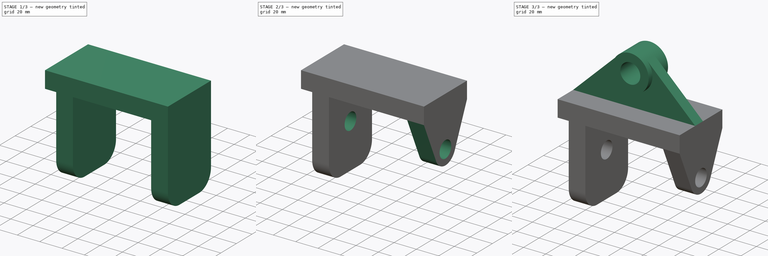
[diagram: build sequence overview — one tinted view per stage of 3, left to right]
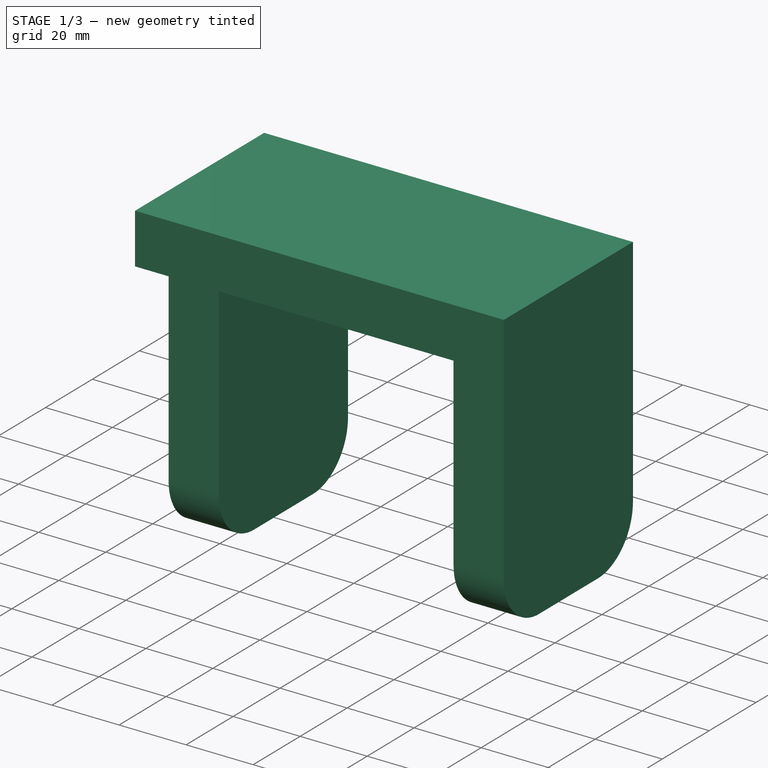
[diagram: stage 1 of 3 — iso view after this stage's code; geometry added in this stage tinted green]
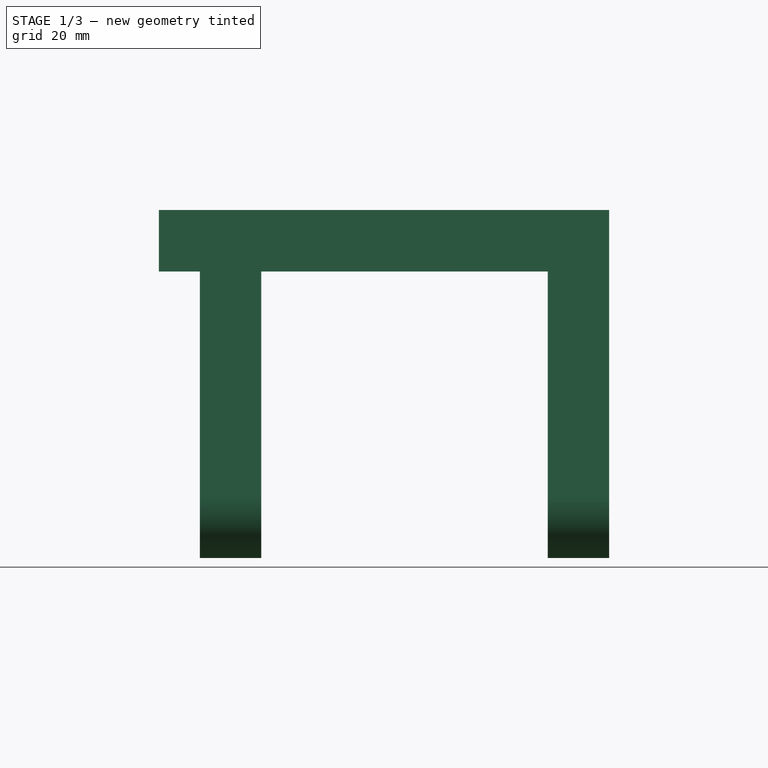
[diagram: stage 1 of 3 — front view after this stage's code; geometry added in this stage tinted green]
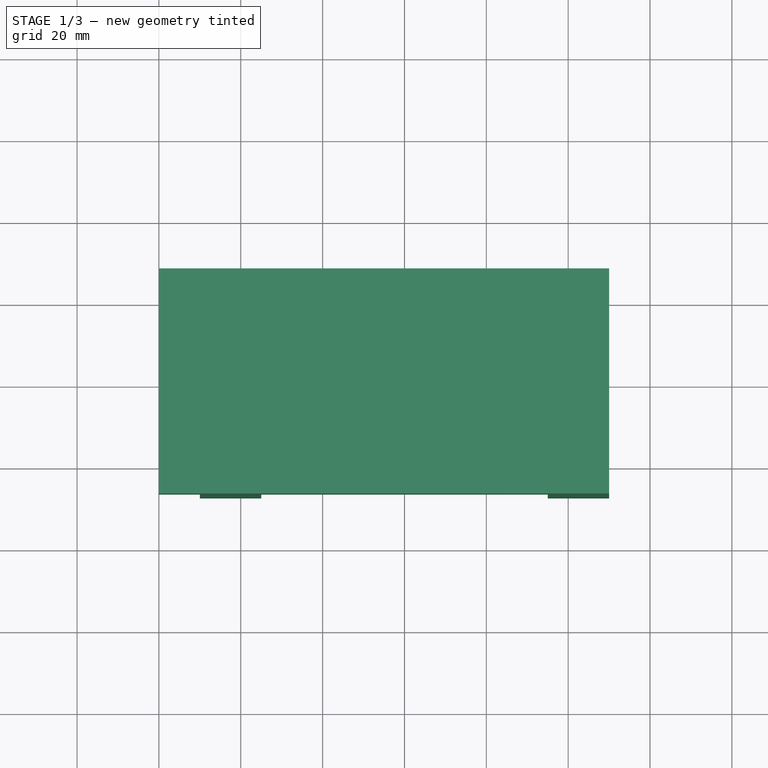
[diagram: stage 1 of 3 — top view after this stage's code; geometry added in this stage tinted green]
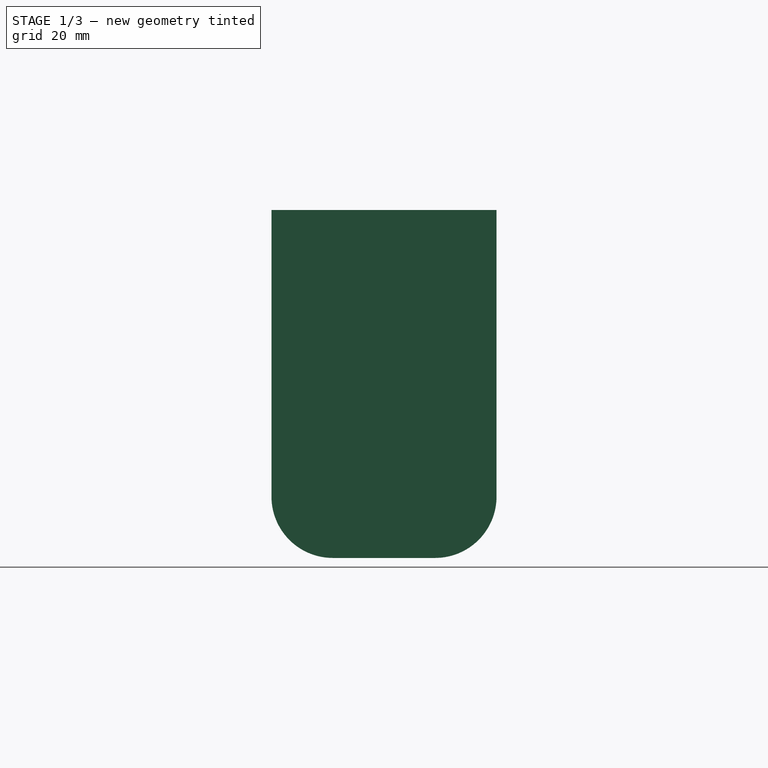
[diagram: stage 1 of 3 — right view after this stage's code; geometry added in this stage tinted green]
FCSTD DOCUMENT  (FreeCAD 1.1R42180 (Git))
Label: 24WC-14-Rear_Support
License: Creative Commons Attribution-NonCommercial-ShareAlike 4.0
LicenseURL: https://creativecommons.org/licenses/by-nc-sa/4.0/
objects: Sketcher::SketchObject×5, PartDesign::Pad×3, PartDesign::Pocket×3, App::Point×1, PartDesign::Body×1, App::TextDocument×1
note: 29 computed .brp shape members not serialized (recipe doc carries the construction recipe); baked Part::Feature solids carry a one-line shape summary decoded from their .brp

FEATURE [App::Point] Origin001  label="Origine"
  Role = Origin
FEATURE [Sketcher::SketchObject] Sketch
  ArcFitTolerance = 1e-06
  AttachmentSupport = -> [Origin]
  ExternalTypes = [0]
  FullyConstrained = true
  MakeInternals = false
  MapMode = 5
  Placement = pos=(0,0,0) rot=(0.57735,0.57735,0.57735;2.0944rad)
  expr: Constraints[6] = 2 * 27.5
  sketch-geometry (8):
    g0: LineSegment StartX=-27.5 StartY=0 StartZ=0 EndX=-27.5 EndY=-70 EndZ=0
    g1: LineSegment StartX=-12.5 StartY=-85 StartZ=0 EndX=12.5 EndY=-85 EndZ=0
    g2: LineSegment StartX=27.5 StartY=-70 StartZ=0 EndX=27.5 EndY=0 EndZ=0
    g3: LineSegment StartX=27.5 StartY=0 StartZ=0 EndX=-27.5 EndY=0 EndZ=0
    g4: ArcOfCircle CenterX=-12.5 CenterY=-70 CenterZ=0 NormalX=0 NormalY=0 NormalZ=1 AngleXU=0 Radius=15 StartAngle=3.14159 EndAngle=4.71239
    g5: GeomPoint [constr] X=-27.5 Y=-85 Z=0
    g6: ArcOfCircle CenterX=12.5 CenterY=-70 CenterZ=0 NormalX=0 NormalY=0 NormalZ=1 AngleXU=0 Radius=15 StartAngle=4.71239 EndAngle=6.28319
    g7: GeomPoint [constr] X=27.5 Y=-85 Z=0
  constraints (19):
    c: Coincident(g2,g3)
    c: Coincident(g3,g0)
    c: Vertical(g0)
    c: Vertical(g2)
    c: Horizontal(g1)
    c: Horizontal(g3)
    c: Distance(g0,g2) = 55
    c: Symmetric(g0,g2,g-1)
    c: DistanceY(g7,g2) = 85
    c: PointOnObject(g5,g0)
    c: PointOnObject(g5,g1)
    c: Tangent(g0,g4) = -1.5708
    c: Tangent(g1,g4) = -1.5708
    c: PointOnObject(g7,g1)
    c: PointOnObject(g7,g2)
    c: Tangent(g1,g6) = -1.5708
    c: Tangent(g2,g6) = -1.5708
    c: Radius(g4) = 15
    c: Equal(g4,g6)
FEATURE [PartDesign::Pad] Pad
  Direction = (1,0,0)
  Length = 110
  Length2 = 10
  Profile = -> Sketch
  ReferenceAxis = -> Sketch [N_Axis]
  Refine = true
  Suppressed = false
  Type = 0
FEATURE [Sketcher::SketchObject] Sketch001
  ArcFitTolerance = 1e-06
  AttachmentSupport = -> [Pad]
  ExternalGeometry = -> [Pad]
  ExternalTypes = [0,0]
  FullyConstrained = false
  MakeInternals = false
  MapMode = 5
  Placement = pos=(0,-27.5,0) rot=(1,0,0;1.5708rad)
  sketch-geometry (13):
    g0: LineSegment StartX=110 StartY=0 StartZ=0 EndX=110 EndY=-85 EndZ=0
    g1: LineSegment StartX=110 StartY=-85 StartZ=0 EndX=95 EndY=-85 EndZ=0
    g2: LineSegment StartX=95 StartY=-85 StartZ=0 EndX=95 EndY=-15 EndZ=0
    g3: LineSegment StartX=95 StartY=-15 StartZ=0 EndX=25 EndY=-15 EndZ=0
    g4: LineSegment StartX=25 StartY=-15 StartZ=0 EndX=25 EndY=-85 EndZ=0
    g5: LineSegment StartX=25 StartY=-85 StartZ=0 EndX=10 EndY=-85 EndZ=0
    g6: LineSegment StartX=10 StartY=-85 StartZ=0 EndX=10 EndY=-15 EndZ=0
    g7: LineSegment StartX=10 StartY=-15 StartZ=0 EndX=0 EndY=-15 EndZ=0
    g8: LineSegment StartX=0 StartY=-15 StartZ=0 EndX=0 EndY=0 EndZ=0
    g9: LineSegment StartX=-32.3726 StartY=32.3964 StartZ=0 EndX=-32.3726 EndY=-117.604 EndZ=0
    g10: LineSegment StartX=-32.3726 StartY=-117.604 StartZ=0 EndX=167.627 EndY=-117.604 EndZ=0
    g11: LineSegment StartX=167.627 StartY=-117.604 StartZ=0 EndX=167.627 EndY=32.3964 EndZ=0
    g12: LineSegment StartX=167.627 StartY=32.3964 StartZ=0 EndX=-32.3726 EndY=32.3964 EndZ=0
  constraints (36):
    c: Coincident(g-3,g0)
    c: Vertical(g0)
    c: Coincident(g0,g1)
    c: Horizontal(g1)
    c: Coincident(g1,g2)
    c: Vertical(g2)
    c: Coincident(g2,g3)
    c: Horizontal(g3)
    c: Coincident(g3,g4)
    c: Vertical(g4)
    c: Coincident(g4,g5)
    c: Coincident(g5,g6)
    c: Vertical(g6)
    c: Coincident(g6,g7)
    c: PointOnObject(g7,g-2)
    c: Horizontal(g7)
    c: Coincident(g7,g8)
    c: Coincident(g8,g-1)
    c: Horizontal(g5)
    c: PointOnObject(g4,g-4)
    c: DistanceX(g4,g0) = 85
    c: DistanceX(g5,g0) = 100
    c: DistanceX(g1,g1) = 15
    c: PointOnObject(g1,g-4)
    c: Distance(g2,g-1) = 15
    c: Horizontal(g6,g3)
    c: Coincident(g9,g10)
    c: Coincident(g10,g11)
    c: Coincident(g11,g12)
    c: Coincident(g12,g9)
    c: Vertical(g9)
    c: Vertical(g11)
    c: Horizontal(g10)
    c: Horizontal(g12)
    c: Distance(g9,g11) = 200
    c: Distance(g10,g12) = 150
FEATURE [PartDesign::Pocket] Pocket
  BaseFeature = -> Pad
  Direction = (0,1,0)
  Length = 5
  Length2 = 5
  Profile = -> Sketch001
  ReferenceAxis = -> Sketch001 [N_Axis]
  Refine = true
  Suppressed = false
  Type = 1
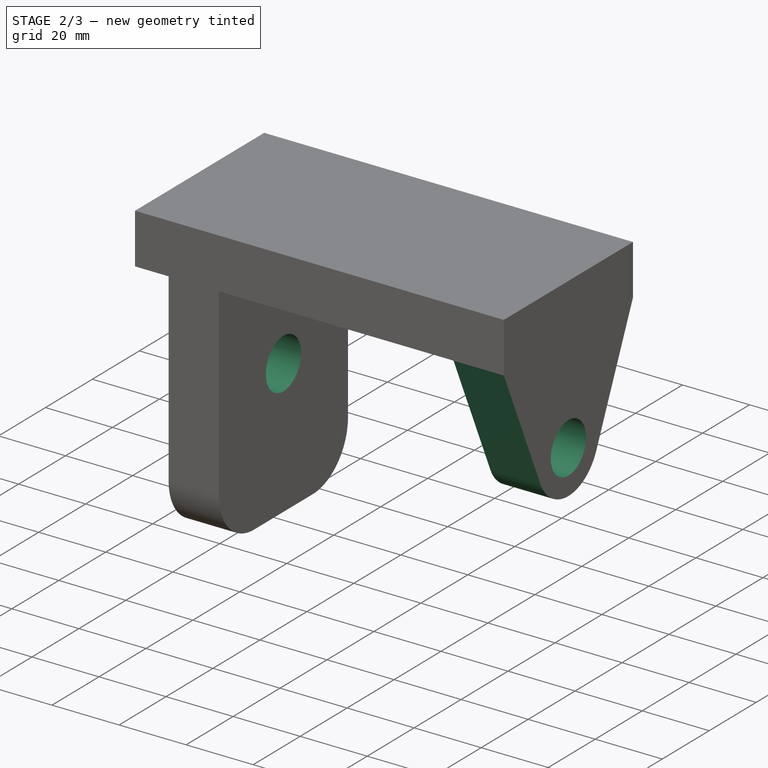
[diagram: stage 2 of 3 — iso view after this stage's code; geometry added in this stage tinted green]
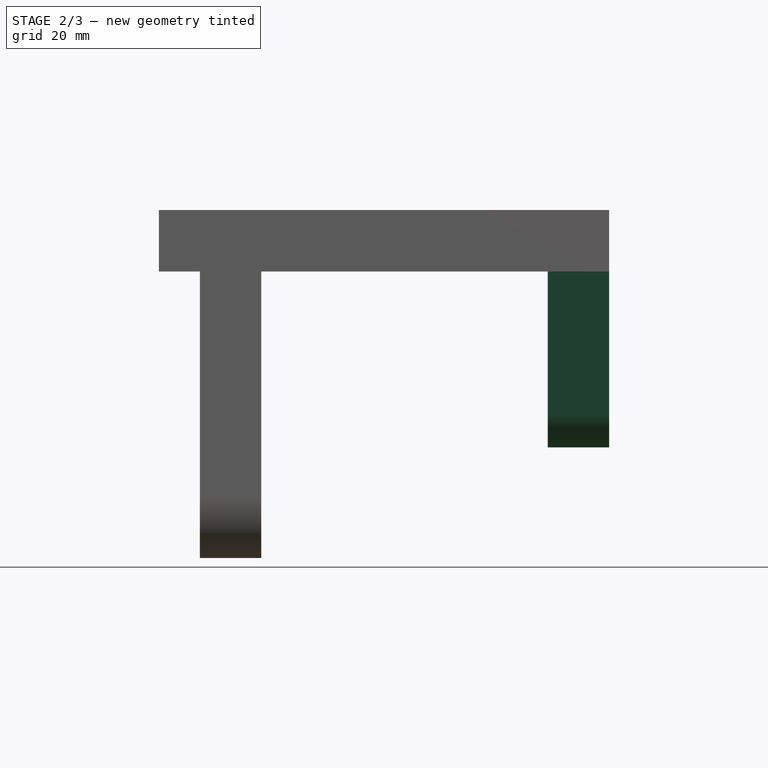
[diagram: stage 2 of 3 — front view after this stage's code; geometry added in this stage tinted green]
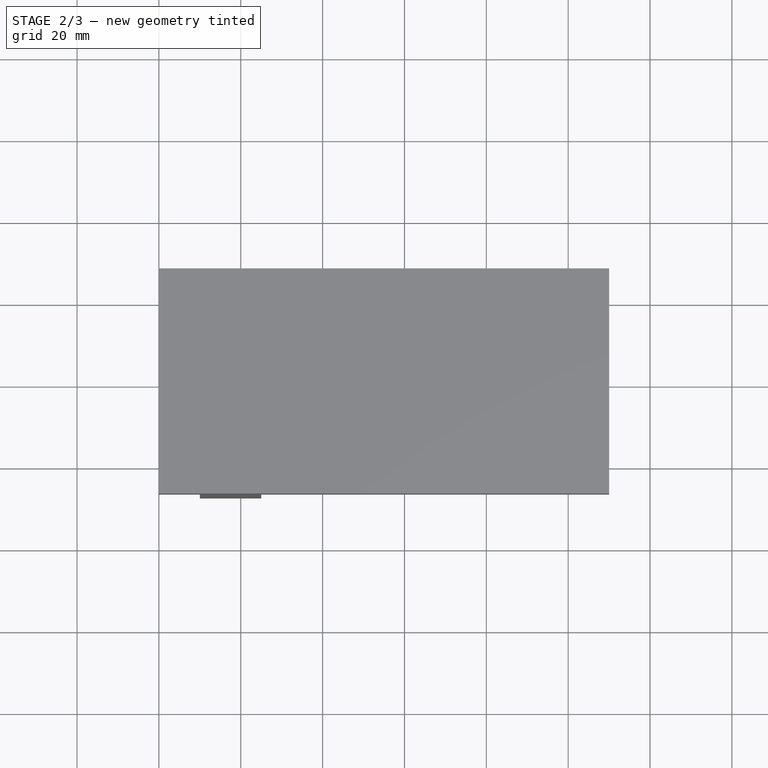
[diagram: stage 2 of 3 — top view after this stage's code; geometry added in this stage tinted green]
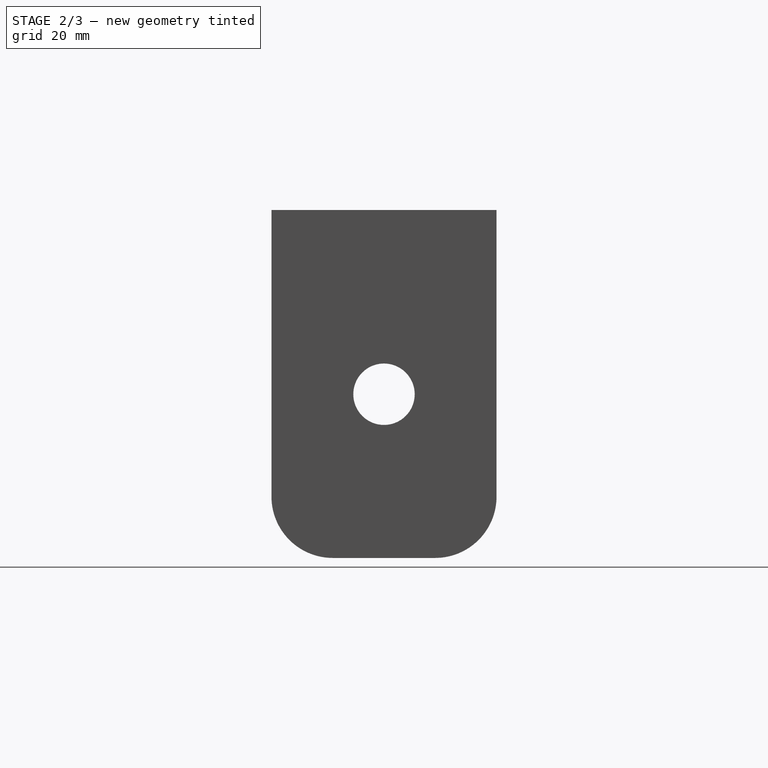
[diagram: stage 2 of 3 — right view after this stage's code; geometry added in this stage tinted green]
FEATURE [Sketcher::SketchObject] Sketch002
  ArcFitTolerance = 1e-06
  AttachmentSupport = -> [Pocket]
  ExternalGeometry = -> [Pocket]
  ExternalTypes = [0,0]
  FullyConstrained = true
  MakeInternals = false
  MapMode = 5
  Placement = pos=(95,0,0) rot=(0.57735,-0.57735,-0.57735;2.0944rad)
  sketch-geometry (7):
    g0: Circle CenterX=0 CenterY=-45 CenterZ=0 NormalX=0 NormalY=0 NormalZ=1 AngleXU=0 Radius=7.5
    g1: LineSegment StartX=-27.5 StartY=-15 StartZ=0 EndX=-11.887 EndY=-50.2631 EndZ=0
    g2: ArcOfCircle CenterX=0 CenterY=-45 CenterZ=0 NormalX=0 NormalY=0 NormalZ=1 AngleXU=0 Radius=13 StartAngle=3.55841 EndAngle=5.86637
    g3: LineSegment StartX=11.887 StartY=-50.2631 StartZ=0 EndX=27.5 EndY=-15 EndZ=0
    g4: LineSegment StartX=-27.5 StartY=-15 StartZ=0 EndX=-27.5 EndY=-85 EndZ=0
    g5: LineSegment StartX=-27.5 StartY=-85 StartZ=0 EndX=27.5 EndY=-85 EndZ=0
    g6: LineSegment StartX=27.5 StartY=-85 StartZ=0 EndX=27.5 EndY=-15 EndZ=0
  constraints (17):
    c: Diameter(g0) = 15
    c: PointOnObject(g0,g-2)
    c: Distance(g0,g-1) = 45
    c: Coincident(g-3,g1)
    c: Tangent(g1,g2) = -1.5708
    c: Tangent(g2,g3) = -1.5708
    c: Coincident(g3,g-3)
    c: Coincident(g0,g2)
    c: Radius(g2) = 13
    c: Coincident(g1,g4)
    c: Coincident(g4,g5)
    c: Horizontal(g5)
    c: Coincident(g5,g6)
    c: Coincident(g6,g3)
    c: Vertical(g4)
    c: Vertical(g6)
    c: PointOnObject(g-4,g5)
FEATURE [PartDesign::Pocket] Pocket001
  BaseFeature = -> Pocket
  Direction = (1,0,0)
  Length = 5
  Length2 = 5
  Profile = -> Sketch002
  ReferenceAxis = -> Sketch002 [N_Axis]
  Refine = true
  Suppressed = false
  Type = 1
FEATURE [PartDesign::Pocket] Pocket002
  BaseFeature = -> Pocket001
  Direction = (-1,0,0)
  Length = 5
  Length2 = 5
  Profile = -> Pocket001 [Edge34]
  Refine = true
  Suppressed = false
  Type = 1
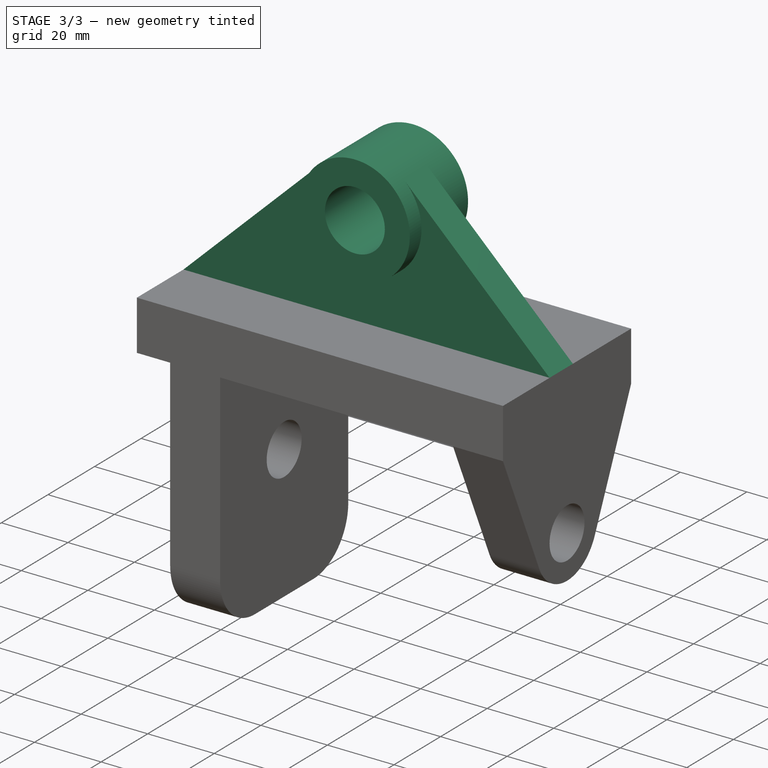
[diagram: stage 3 of 3 — iso view after this stage's code; geometry added in this stage tinted green]
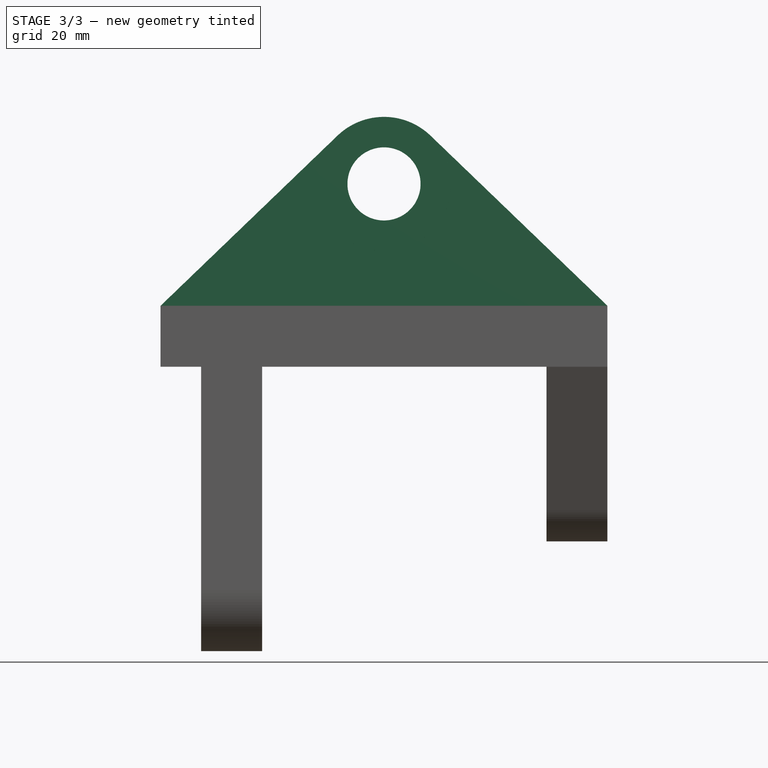
[diagram: stage 3 of 3 — front view after this stage's code; geometry added in this stage tinted green]
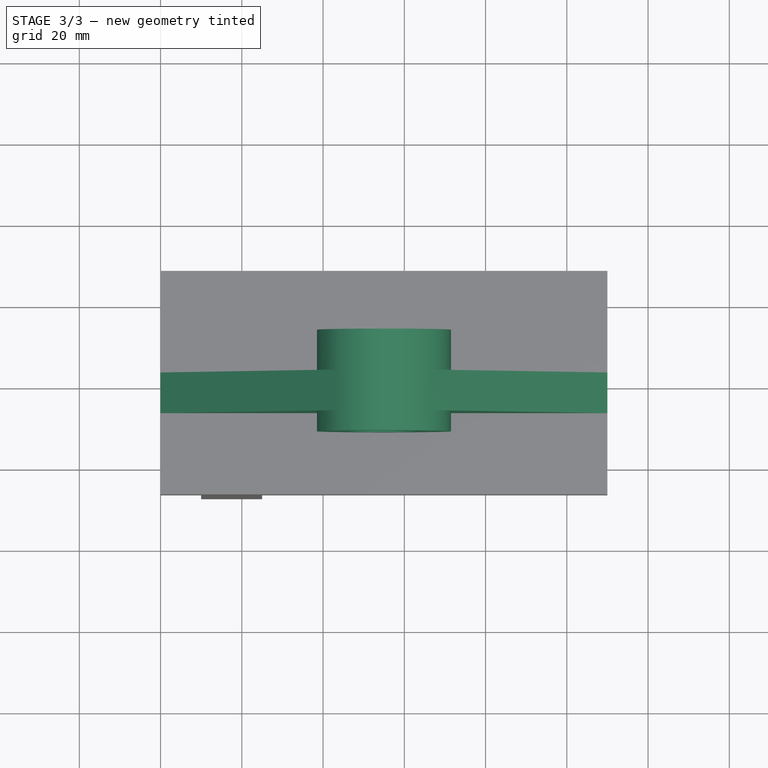
[diagram: stage 3 of 3 — top view after this stage's code; geometry added in this stage tinted green]
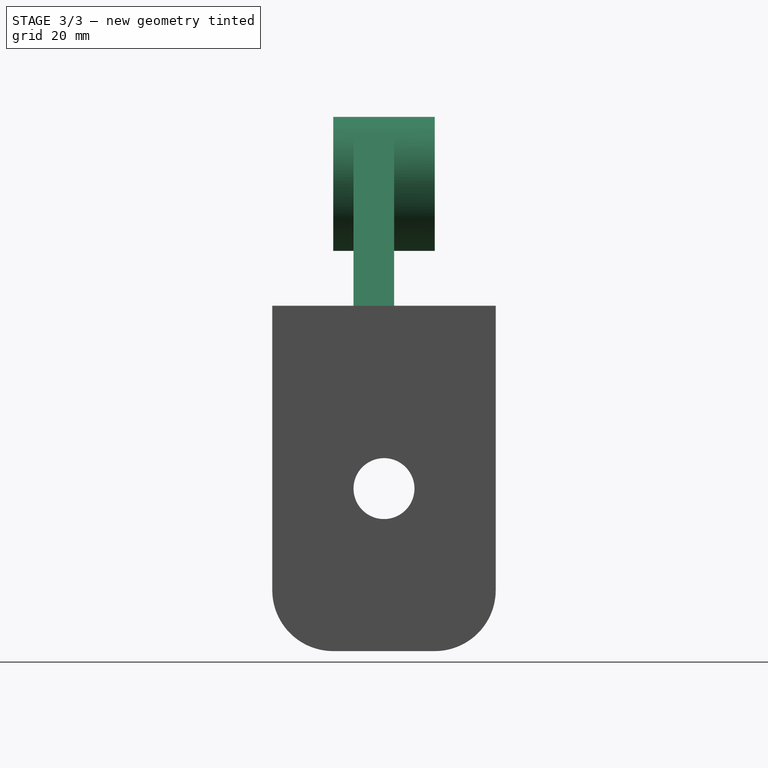
[diagram: stage 3 of 3 — right view after this stage's code; geometry added in this stage tinted green]
FEATURE [Sketcher::SketchObject] Sketch003
  ArcFitTolerance = 1e-06
  AttachmentOffset = pos=(0,0,-2.5) rot=(0,0,1;0rad)
  AttachmentSupport = -> [Origin]
  ExternalGeometry = -> [Pocket002]
  ExternalTypes = [0]
  FullyConstrained = true
  MakeInternals = false
  MapMode = 5
  Placement = pos=(0,2.5,-6e-16) rot=(1,0,0;1.5708rad)
  expr: Constraints[7] = 33 / 2
  sketch-geometry (4):
    g0: LineSegment StartX=0 StartY=0 StartZ=0 EndX=43.5629 EndY=41.893 EndZ=0
    g1: ArcOfCircle CenterX=55 CenterY=30 CenterZ=0 NormalX=0 NormalY=0 NormalZ=1 AngleXU=0 Radius=16.5 StartAngle=0.804937 EndAngle=2.33666
    g2: LineSegment StartX=66.4371 StartY=41.893 StartZ=0 EndX=110 EndY=7.1e-15 EndZ=0
    g3: Circle CenterX=55 CenterY=30 CenterZ=0 NormalX=0 NormalY=0 NormalZ=1 AngleXU=0 Radius=9
  constraints (9):
    c: Coincident(g-1,g0)
    c: Tangent(g0,g1) = 1.5708
    c: Tangent(g1,g2) = 1.5708
    c: Coincident(g2,g-3)
    c: Distance(g1,g-3) = 30
    c: Coincident(g3,g1)
    c: Diameter(g3) = 18
    c: Radius(g1) = 16.5
    c: Equal(g0,g2)
FEATURE [PartDesign::Pad] Pad001
  BaseFeature = -> Pocket002
  Direction = (0,-1,2e-16)
  Length = 10
  Length2 = 10
  Profile = -> Sketch003
  ReferenceAxis = -> Sketch003 [N_Axis]
  Refine = true
  Suppressed = false
  Type = 0
FEATURE [Sketcher::SketchObject] Sketch004
  ArcFitTolerance = 1e-06
  AttachmentSupport = -> [Pad001]
  ExternalGeometry = -> [Pad001]
  ExternalTypes = [0,0]
  FullyConstrained = true
  MakeInternals = false
  MapMode = 5
  Placement = pos=(0,2.5,-6e-16) rot=(0,0.707107,0.707107;3.14159rad)
  sketch-geometry (1):
    g0: Circle CenterX=-55 CenterY=30 CenterZ=0 NormalX=0 NormalY=0 NormalZ=1 AngleXU=0 Radius=16.5
  constraints (2):
    c: Coincident(g0,g-4)
    c: PointOnObject(g-4,g0)
FEATURE [PartDesign::Pad] Pad002
  BaseFeature = -> Pad001
  Direction = (0,1,-2e-16)
  Length = 15
  Length2 = 10
  Profile = -> Sketch004
  ReferenceAxis = -> Sketch004 [N_Axis]
  Refine = true
  Reversed = true
  Suppressed = false
  Type = 4
FEATURE [PartDesign::Body] Body
  AllowCompound = true
  Group = -> [Sketch,Pad,Sketch001,Pocket,Sketch002,Pocket001,Pocket002,Sketch003,Pad001,Sketch004,Pad002]
  Origin = -> Origin
  Tip = -> Pad002
FEATURE [App::TextDocument] Text_document  label="Text document"
  Text = https://www.youtube.com/watch?v=oZRkC93XuCA\n\n2700 kg/m3\n\n0.5389 kg GOOD!
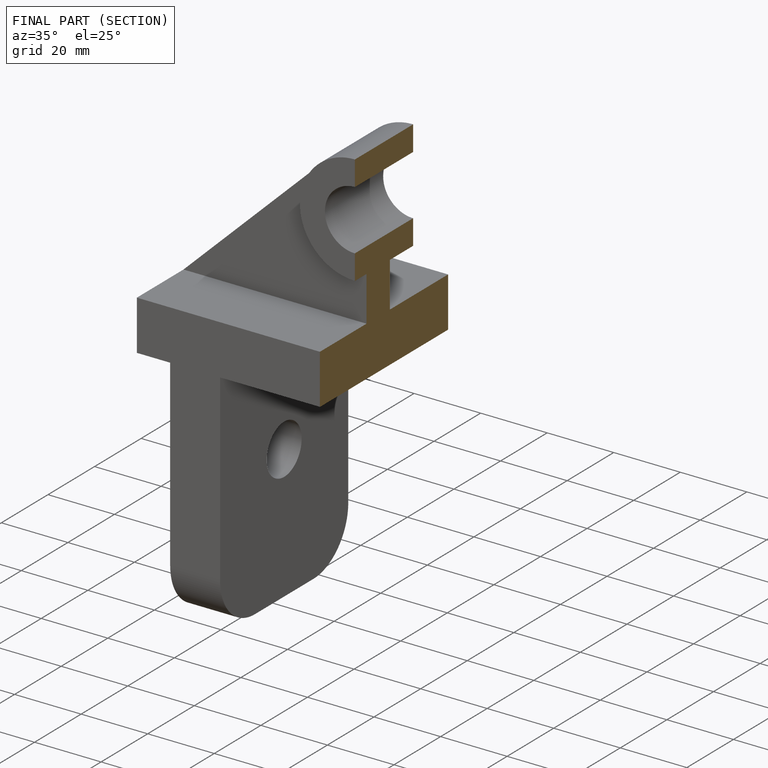
[diagram: finished part — half-section view (interior)]
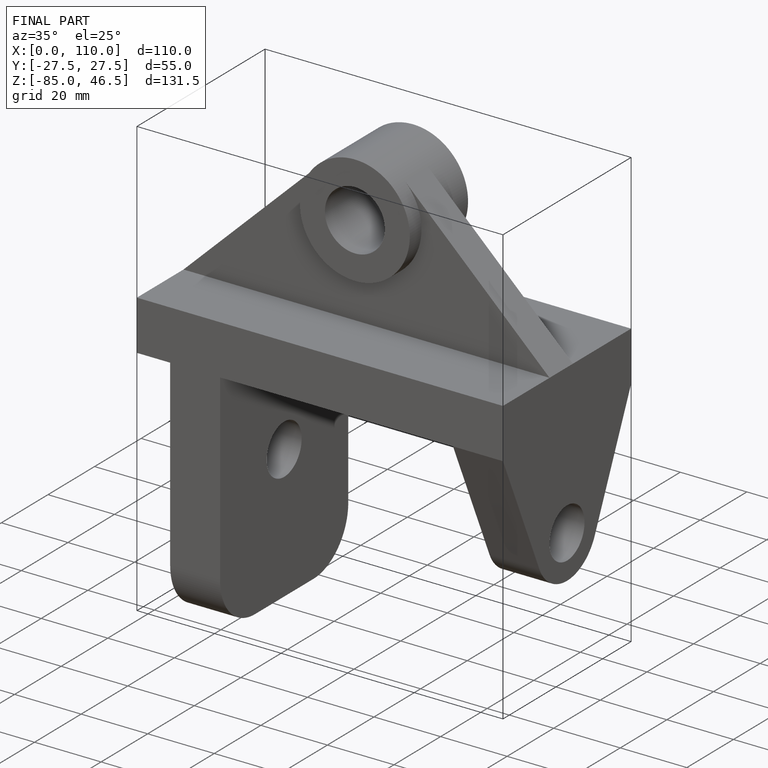
[diagram: finished part — iso view with bounding-box wireframe]
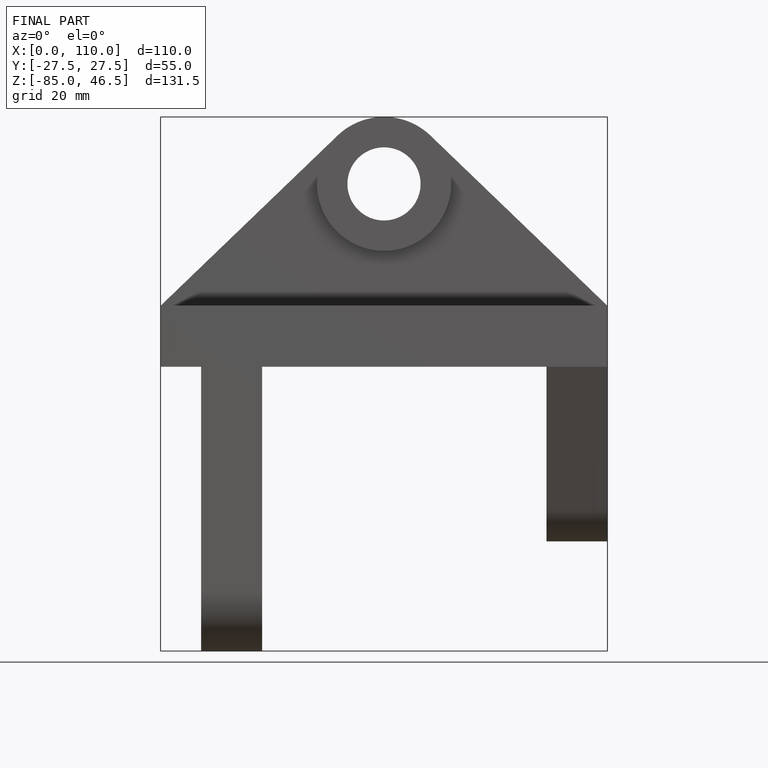
[diagram: finished part — front view with bounding-box wireframe]
